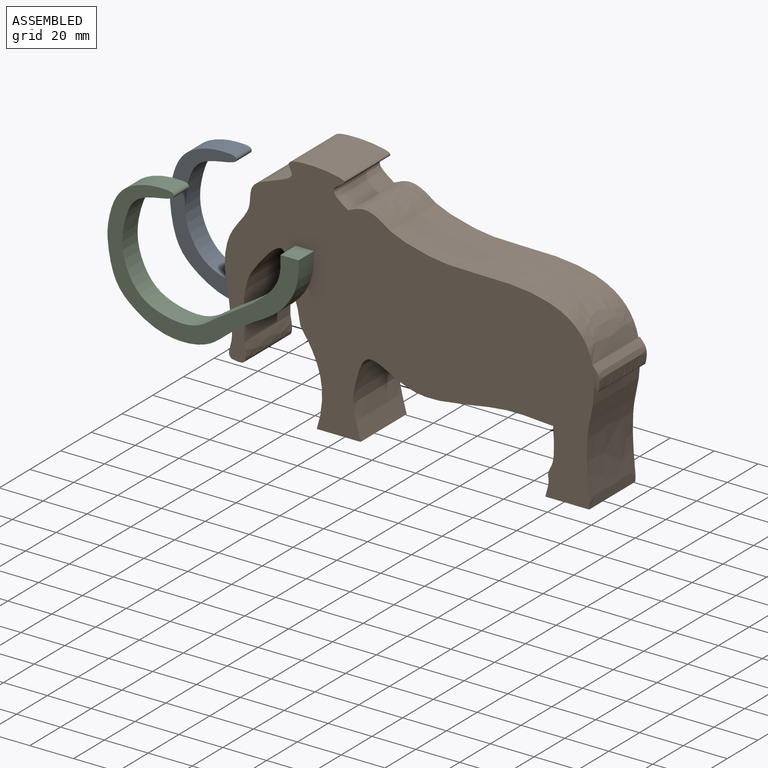
[diagram: assembled view]
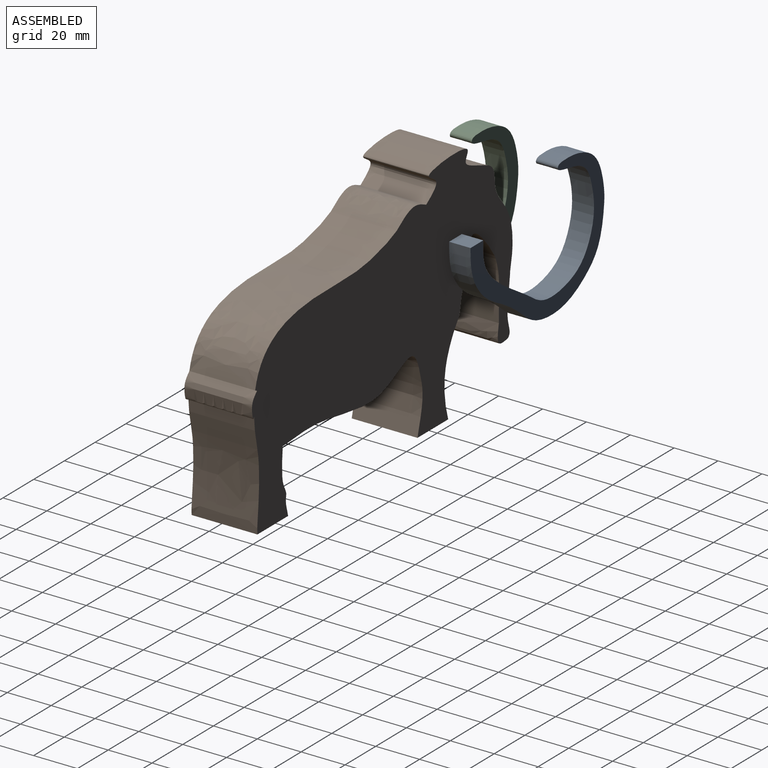
[diagram: assembled view, second angle]
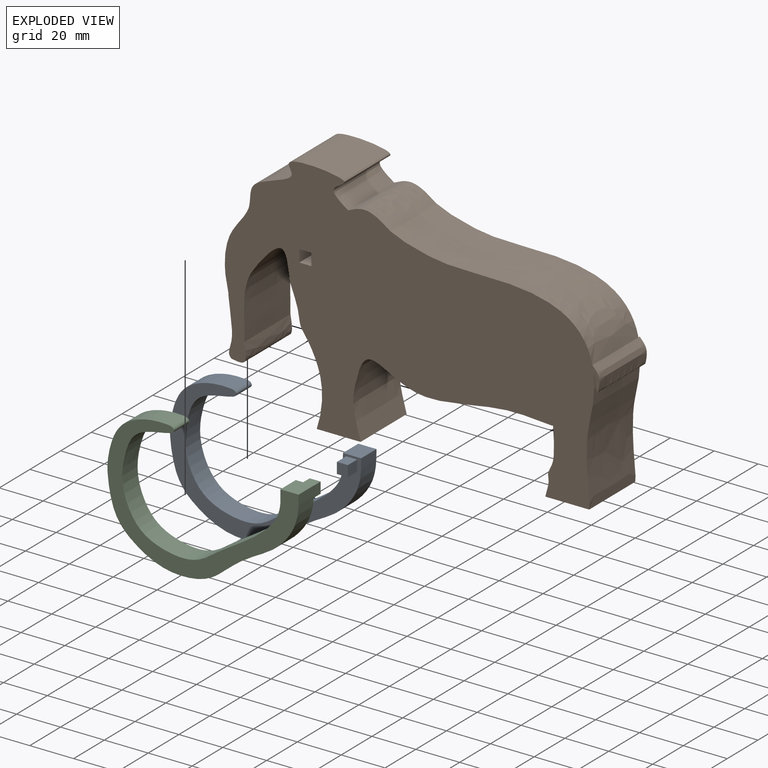
[diagram: exploded view]
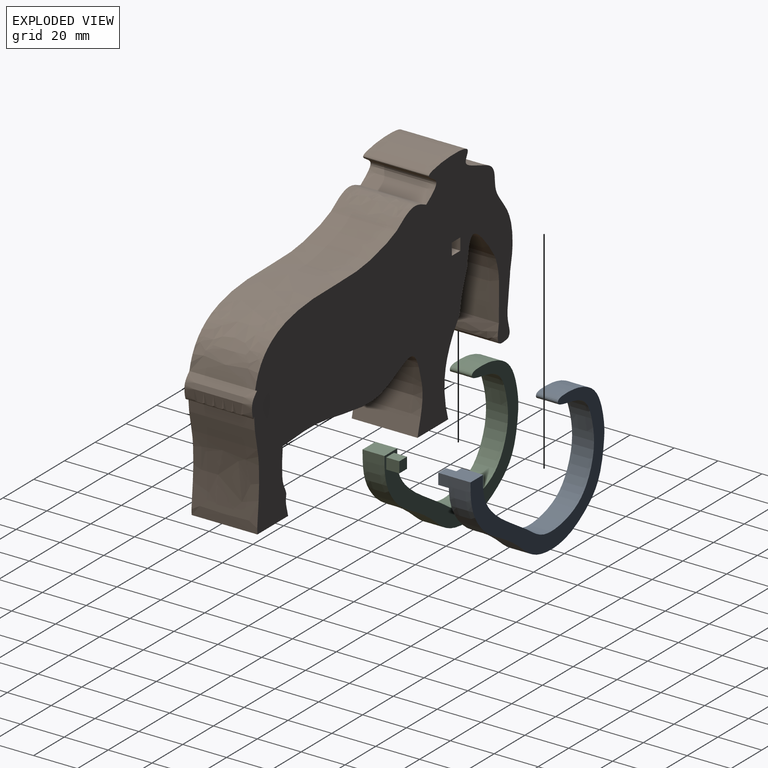
[diagram: exploded view, second angle]
ASSEMBLY  parts=3 mates=4
PART A: 9 faces, bbox 87.4x16x61.4 mm
  f0: extruded ~86.96x60.24mm, area 3209.7mm2, adj f1,f2,f3
  f1: plane 10x8.3mm, normal (0,0,1), area 83mm2, adj f0,f2,f3
  f2: plane 87.38x61.44mm, normal (0,-1,0), area 1113.6mm2, adj f0,f1
  f3: plane 87.38x61.44mm, normal (0,1,0), area 1088.6mm2, adj f0,f1,f4,f5,f6,f7
  f4: plane 6x5mm, normal (0,0,-1), area 30mm2, adj f3,f5,f7,f8
  f5: plane 6x5mm, normal (-1,0,0), area 30mm2, adj f3,f4,f6,f8
  f6: plane 6x5mm, normal (0,0,1), area 30mm2, adj f3,f5,f7,f8
  f7: plane 6x5mm, normal (1,0,0), area 30mm2, adj f3,f4,f6,f8
  f8: plane 5x5mm, normal (0,1,0), area 25mm2, adj f4,f5,f6,f7
PART B: 23 faces, bbox 172.5x30.8x109.6 mm
  f0: extruded ~2.83x0.8mm, area 2.3mm2, adj f1,f2,f18
  f1: extruded ~30.8x10.64mm, area 628.2mm2, adj f0,f2,f7,f8,f17
  f2: plane 10.82x3.34mm, normal (0,1,0), area 14.3mm2, adj f0,f1
  f3: extruded ~91.04x35.1mm, area 3714.2mm2, adj f4,f16,f17,f18
  f4: extruded ~30.16x30mm, area 925.6mm2, adj f3,f5,f17,f18
  f5: plane 30x20mm, normal (0,0,-1), area 600mm2, adj f4,f6,f17,f18
  f6: extruded ~34.99x30mm, area 1053.7mm2, adj f5,f7,f17,f18
  f7: extruded ~30x22.11mm, area 669.5mm2, adj f1,f6,f17,f18
  f8: extruded ~91.99x30.5mm, area 3104.6mm2, adj f1,f9,f17,f18
  f9: extruded ~30x19.43mm, area 639.8mm2, adj f8,f10,f17,f18
  f10: extruded ~63.07x56.21mm, area 3644.8mm2, adj f9,f11,f17,f18
  f11: extruded ~30x26.46mm, area 819mm2, adj f10,f12,f17,f18
  f12: extruded ~30x8.93mm, area 437.9mm2, adj f11,f13,f17,f18
  f13: extruded ~42.85x30mm, area 1852.5mm2, adj f12,f14,f17,f18
  f14: extruded ~30x23.98mm, area 779.9mm2, adj f13,f15,f17,f18
  f15: extruded ~34.99x30mm, area 1094.6mm2, adj f14,f16,f17,f18
  f16: plane 30x20mm, normal (0,0,-1), area 600mm2, adj f3,f15,f17,f18
  f17: plane 172.54x109.61mm, normal (0,-1,0), area 9953.9mm2, adj f1,f3,f4,f5,f6,f7,f8,f9
  f18: plane 172.54x109.61mm, normal (0,1,0), area 9939.7mm2, adj f0,f3,f4,f5,f6,f7,f8,f9
  f19: plane 30x5.5mm, normal (-1,0,0), area 165mm2, adj f17,f18,f20,f22
  f20: plane 30x5.5mm, normal (0,0,1), area 165mm2, adj f17,f18,f19,f21
  f21: plane 30x5.5mm, normal (1,0,0), area 165mm2, adj f17,f18,f20,f22
  f22: plane 30x5.5mm, normal (0,0,-1), area 165mm2, adj f17,f18,f19,f21
PART C: 9 faces, bbox 87.4x16x61.4 mm
  f0: plane 87.38x61.44mm, normal (0,-1,0), area 1088.6mm2, adj f1,f2,f4,f5,f6,f7
  f1: extruded ~86.96x60.24mm, area 3209.7mm2, adj f0,f2,f3
  f2: plane 10x8.3mm, normal (0,0,1), area 83mm2, adj f0,f1,f3
  f3: plane 87.38x61.44mm, normal (0,1,0), area 1113.6mm2, adj f1,f2
  f4: plane 6x5mm, normal (0,0,-1), area 30mm2, adj f0,f5,f7,f8
  f5: plane 6x5mm, normal (1,0,0), area 30mm2, adj f0,f4,f6,f8
  f6: plane 6x5mm, normal (0,0,1), area 30mm2, adj f0,f5,f7,f8
  f7: plane 6x5mm, normal (-1,0,0), area 30mm2, adj f0,f4,f6,f8
  f8: plane 5x5mm, normal (0,-1,0), area 25mm2, adj f4,f5,f6,f7
PLACE A rot(axis=(0,0,-1),180deg) t=(95.2,8.57,-48.34)mm
PLACE B t=(193.51,8.8,-38.6)mm
PLACE C rot(axis=(0,0,-1),180deg) t=(94.51,-31.16,-48.34)mm
MATE planar B.f22 <-> C.f6  axis (0,0,-1) through (134.48,-21.2,-22.24)mm
MATE planar A.f6 <-> B.f22  axis (0,0,1) through (134.73,5.57,-22.24)mm
MATE planar A.f5 <-> B.f19  axis (1,0,0) through (137.23,5.57,-24.74)mm
MATE planar C.f7 <-> B.f19  axis (1,0,0) through (137.23,-18.16,-24.74)mm
